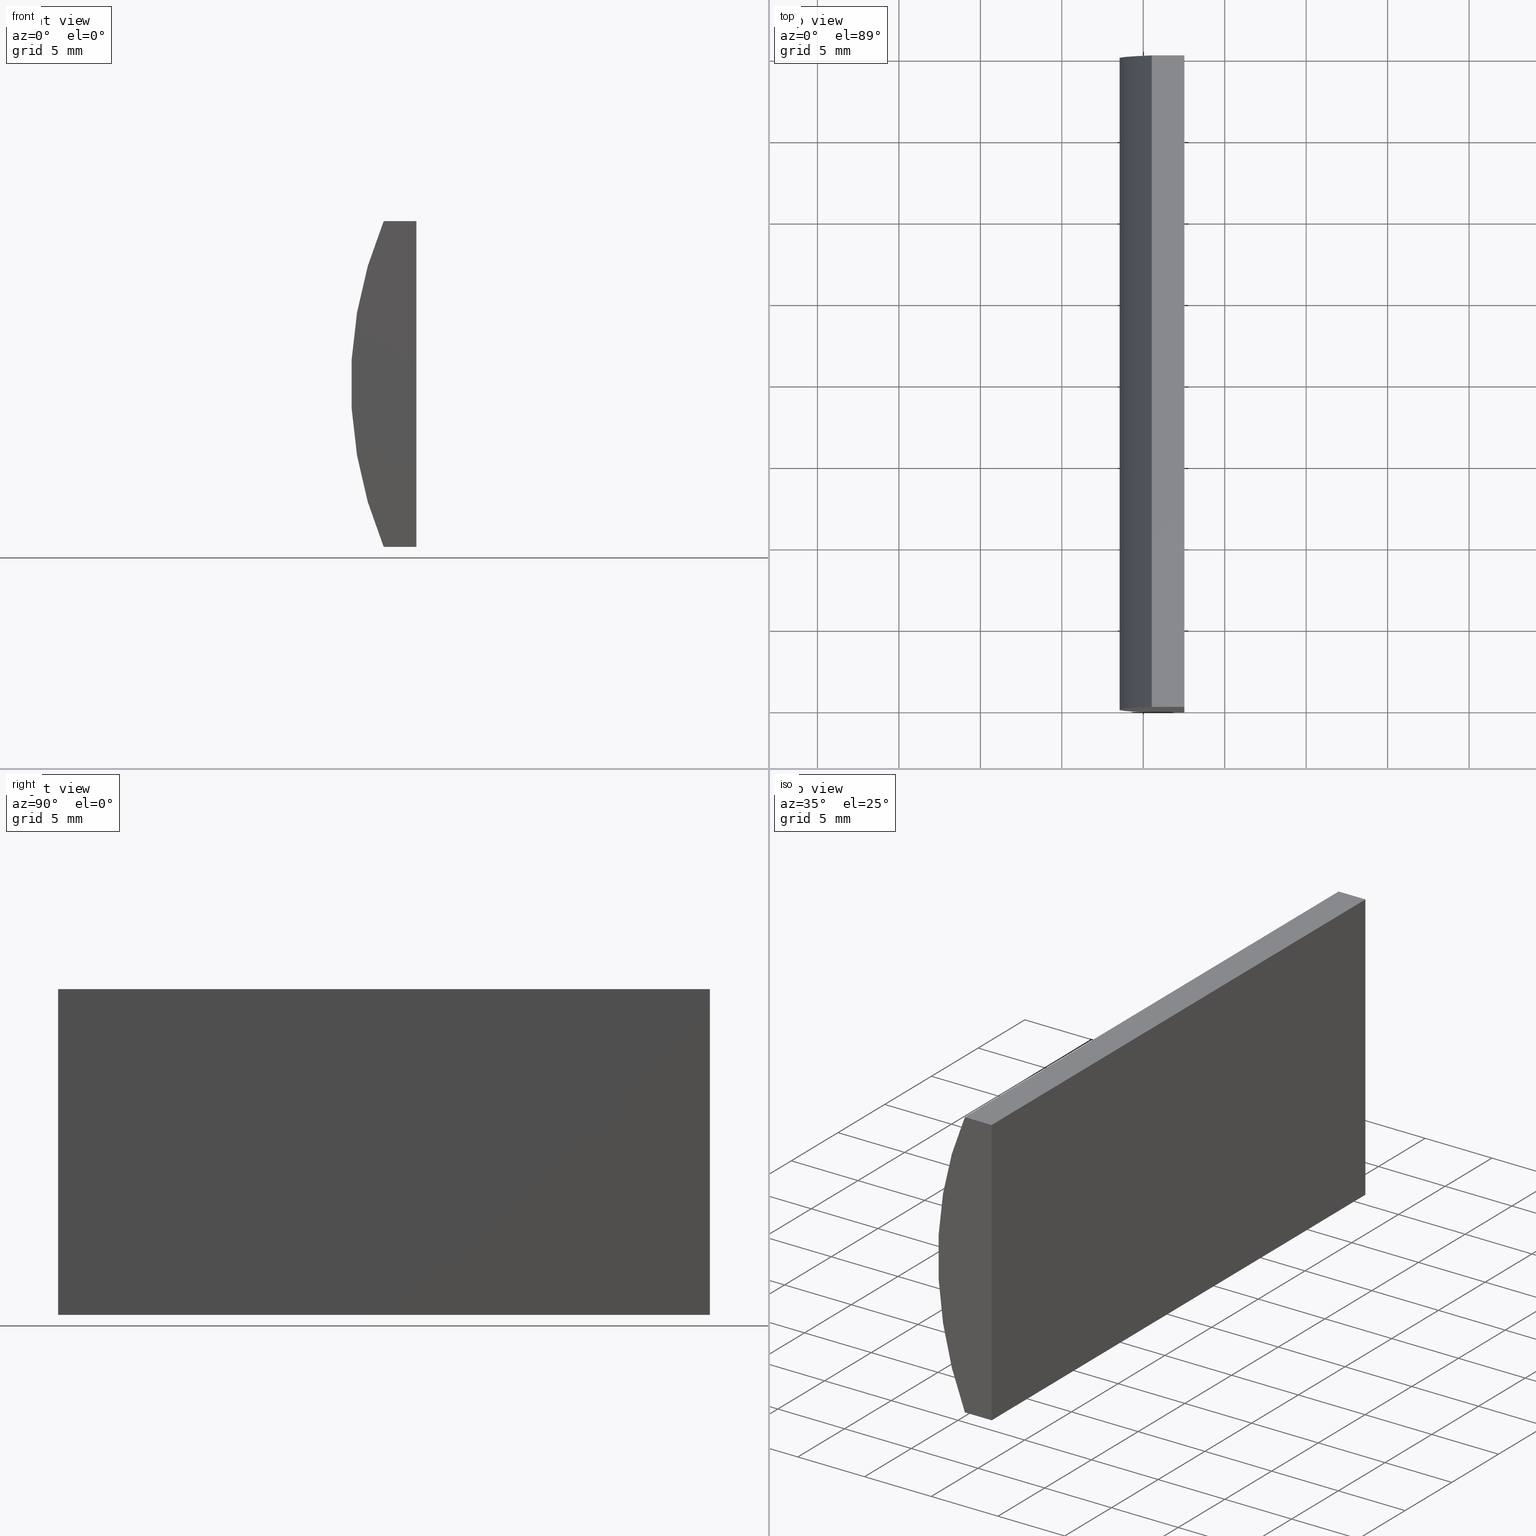
[diagram: canonical four-view strip — front | top / right | iso, engineering-drawing reading convention]
A machine part, canonical four-view strip (front | top / right | iso — engineering-drawing reading convention). The complete STEP part file that produces these views, byte-faithful:
ISO-10303-21;
HEADER;
FILE_DESCRIPTION (( 'STEP AP214' ),
    '1' );
FILE_NAME ('155047.STEP',
    '2019-06-18T03:54:17',
    ( 'user' ),
    ( '΢���й�' ),
    'SwSTEP 2.0',
    'SolidWorks 2016',
    '' );
FILE_SCHEMA (( 'AUTOMOTIVE_DESIGN' ));
ENDSEC;

DATA;
#1 = ORIENTED_EDGE ( 'NONE', *, *, #31, .F. ) ;
#2 = DIRECTION ( 'NONE',  ( -3.469446951953614200E-016, -0.0000000000000000000, -1.000000000000000000 ) ) ;
#3 = ADVANCED_FACE ( 'NONE', ( #80 ), #70, .F. ) ;
#4 = ORIENTED_EDGE ( 'NONE', *, *, #196, .T. ) ;
#5 = LINE ( 'NONE', #18, #135 ) ;
#6 = VERTEX_POINT ( 'NONE', #73 ) ;
#7 = PRESENTATION_LAYER_ASSIGNMENT (  '', '', ( #29 ) ) ;
#8 = DIRECTION ( 'NONE',  ( -0.0000000000000000000, -1.000000000000000000, -0.0000000000000000000 ) ) ;
#9 =( LENGTH_UNIT ( ) NAMED_UNIT ( * ) SI_UNIT ( .MILLI., .METRE. ) );
#10 = SURFACE_SIDE_STYLE ('',( #120 ) ) ;
#11 = CARTESIAN_POINT ( 'NONE',  ( -17.47479566514874000, 40.00000000000000000, -10.00000000000000000 ) ) ;
#12 = LINE ( 'NONE', #195, #198 ) ;
#13 = PLANE ( 'NONE',  #117 ) ;
#14 = AXIS2_PLACEMENT_3D ( 'NONE', #95, #116, #91 ) ;
#15 = PRODUCT_DEFINITION_SHAPE ( 'NONE', 'NONE',  #147 ) ;
#16 = PRESENTATION_STYLE_ASSIGNMENT (( #40 ) ) ;
#17 = ORIENTED_EDGE ( 'NONE', *, *, #188, .T. ) ;
#18 = CARTESIAN_POINT ( 'NONE',  ( -17.47479566514874000, 40.00000000000000000, -10.00000000000000000 ) ) ;
#19 = ADVANCED_FACE ( 'NONE', ( #168 ), #104, .T. ) ;
#20 = VERTEX_POINT ( 'NONE', #11 ) ;
#21 = DIRECTION ( 'NONE',  ( -1.000000000000000000, 0.0000000000000000000, -0.0000000000000000000 ) ) ;
#22 = ADVANCED_FACE ( 'NONE', ( #108 ), #146, .F. ) ;
#23 = DIRECTION ( 'NONE',  ( -1.000000000000000000, -0.0000000000000000000, -0.0000000000000000000 ) ) ;
#24 = LINE ( 'NONE', #192, #100 ) ;
#25 = PLANE ( 'NONE',  #153 ) ;
#26 = EDGE_LOOP ( 'NONE', ( #172, #160, #112, #186 ) ) ;
#27 = FILL_AREA_STYLE ('',( #129 ) ) ;
#28 = VERTEX_POINT ( 'NONE', #111 ) ;
#29 = STYLED_ITEM ( 'NONE', ( #87 ), #169 ) ;
#30 = CARTESIAN_POINT ( 'NONE',  ( -19.48221373003152100, 40.00000000000000000, 10.00000000000000000 ) ) ;
#31 = EDGE_CURVE ( 'NONE', #85, #158, #126, .T. ) ;
#32 = ORIENTED_EDGE ( 'NONE', *, *, #105, .T. ) ;
#33 = CARTESIAN_POINT ( 'NONE',  ( 4.355204334851265500, 0.0000000000000000000, 4.286263797015675000E-017 ) ) ;
#34 = SURFACE_SIDE_STYLE ('',( #178 ) ) ;
#35 = EDGE_LOOP ( 'NONE', ( #50, #119, #121, #4 ) ) ;
#36 = SURFACE_STYLE_USAGE ( .BOTH. , #34 ) ;
#37 = EDGE_CURVE ( 'NONE', #6, #41, #24, .T. ) ;
#38 =( NAMED_UNIT ( * ) PLANE_ANGLE_UNIT ( ) SI_UNIT ( $, .RADIAN. ) );
#39 = DIRECTION ( 'NONE',  ( 0.0000000000000000000, -0.0000000000000000000, 1.000000000000000000 ) ) ;
#40 = SURFACE_STYLE_USAGE ( .BOTH. , #10 ) ;
#41 = VERTEX_POINT ( 'NONE', #109 ) ;
#42 = CARTESIAN_POINT ( 'NONE',  ( -19.48221373003152100, 40.00000000000000000, -10.00000000000000000 ) ) ;
#43 = FACE_OUTER_BOUND ( 'NONE', #69, .T. ) ;
#44 = AXIS2_PLACEMENT_3D ( 'NONE', #189, #125, #128 ) ;
#45 = CIRCLE ( 'NONE', #204, 25.85000000000000500 ) ;
#46 = EDGE_CURVE ( 'NONE', #197, #102, #12, .T. ) ;
#47 =( GEOMETRIC_REPRESENTATION_CONTEXT ( 3 ) GLOBAL_UNCERTAINTY_ASSIGNED_CONTEXT ( ( #154 ) ) GLOBAL_UNIT_ASSIGNED_CONTEXT ( ( #110, #124, #58 ) ) REPRESENTATION_CONTEXT ( 'NONE', 'WORKASPACE' ) );
#48 =( NAMED_UNIT ( * ) PLANE_ANGLE_UNIT ( ) SI_UNIT ( $, .RADIAN. ) );
#49 = UNCERTAINTY_MEASURE_WITH_UNIT (LENGTH_MEASURE( 1.000000000000000100E-005 ), #52, 'distance_accuracy_value', 'NONE');
#50 = ORIENTED_EDGE ( 'NONE', *, *, #31, .T. ) ;
#51 = EDGE_CURVE ( 'NONE', #6, #197, #45, .T. ) ;
#52 =( LENGTH_UNIT ( ) NAMED_UNIT ( * ) SI_UNIT ( .MILLI., .METRE. ) );
#53 = CARTESIAN_POINT ( 'NONE',  ( -19.48221373003152100, 40.00000000000000000, -10.00000000000000000 ) ) ;
#54 = CARTESIAN_POINT ( 'NONE',  ( -17.47479566514874000, 40.00000000000000000, -10.00000000000000000 ) ) ;
#55 = DIRECTION ( 'NONE',  ( 0.0000000000000000000, 0.0000000000000000000, 1.000000000000000000 ) ) ;
#56 =( GEOMETRIC_REPRESENTATION_CONTEXT ( 3 ) GLOBAL_UNCERTAINTY_ASSIGNED_CONTEXT ( ( #183 ) ) GLOBAL_UNIT_ASSIGNED_CONTEXT ( ( #9, #38, #144 ) ) REPRESENTATION_CONTEXT ( 'NONE', 'WORKASPACE' ) );
#57 = VECTOR ( 'NONE', #65, 1000.000000000000000 ) ;
#58 =( NAMED_UNIT ( * ) SI_UNIT ( $, .STERADIAN. ) SOLID_ANGLE_UNIT ( ) );
#59 = DIRECTION ( 'NONE',  ( -1.000000000000000000, -0.0000000000000000000, -0.0000000000000000000 ) ) ;
#60 = PRODUCT_DEFINITION_CONTEXT ( 'detailed design', #90, 'design' ) ;
#61 = COLOUR_RGB ( '',1.000000000000000000, 1.000000000000000000, 1.000000000000000000 ) ;
#62 = CARTESIAN_POINT ( 'NONE',  ( -19.48221373003152100, 0.0000000000000000000, 10.00000000000000000 ) ) ;
#63 = PRESENTATION_LAYER_ASSIGNMENT (  '', '', ( #142 ) ) ;
#64 = CARTESIAN_POINT ( 'NONE',  ( -17.47479566514874000, 0.0000000000000000000, -10.00000000000000000 ) ) ;
#65 = DIRECTION ( 'NONE',  ( 1.000000000000000000, 0.0000000000000000000, 0.0000000000000000000 ) ) ;
#66 = FACE_OUTER_BOUND ( 'NONE', #26, .T. ) ;
#67 = LINE ( 'NONE', #54, #165 ) ;
#68 = ORIENTED_EDGE ( 'NONE', *, *, #157, .T. ) ;
#69 = EDGE_LOOP ( 'NONE', ( #86, #94, #1, #177 ) ) ;
#70 = PLANE ( 'NONE',  #162 ) ;
#71 = MECHANICAL_DESIGN_GEOMETRIC_PRESENTATION_REPRESENTATION (  '', ( #29 ), #56 ) ;
#72 = EDGE_LOOP ( 'NONE', ( #68, #180, #163, #130 ) ) ;
#73 = CARTESIAN_POINT ( 'NONE',  ( -19.48221373003152100, 40.00000000000000000, -10.00000000000000000 ) ) ;
#74 = DIRECTION ( 'NONE',  ( 1.000000000000000000, 0.0000000000000000000, -0.0000000000000000000 ) ) ;
#75 =( GEOMETRIC_REPRESENTATION_CONTEXT ( 3 ) GLOBAL_UNCERTAINTY_ASSIGNED_CONTEXT ( ( #49 ) ) GLOBAL_UNIT_ASSIGNED_CONTEXT ( ( #52, #48, #184 ) ) REPRESENTATION_CONTEXT ( 'NONE', 'WORKASPACE' ) );
#76 = VECTOR ( 'NONE', #8, 1000.000000000000000 ) ;
#77 = FILL_AREA_STYLE ('',( #145 ) ) ;
#78 = DIRECTION ( 'NONE',  ( 0.0000000000000000000, 1.000000000000000000, 0.0000000000000000000 ) ) ;
#79 = EDGE_CURVE ( 'NONE', #20, #6, #136, .T. ) ;
#80 = FACE_OUTER_BOUND ( 'NONE', #35, .T. ) ;
#81 = EDGE_CURVE ( 'NONE', #158, #41, #106, .T. ) ;
#82 = PRODUCT ( '155047', '155047', '', ( #122 ) ) ;
#83 = MECHANICAL_DESIGN_GEOMETRIC_PRESENTATION_REPRESENTATION (  '', ( #142 ), #47 ) ;
#84 = ORIENTED_EDGE ( 'NONE', *, *, #46, .T. ) ;
#85 = VERTEX_POINT ( 'NONE', #143 ) ;
#86 = ORIENTED_EDGE ( 'NONE', *, *, #157, .F. ) ;
#87 = PRESENTATION_STYLE_ASSIGNMENT (( #36 ) ) ;
#88 = APPLICATION_PROTOCOL_DEFINITION ( 'draft international standard', 'automotive_design', 1998, #90 ) ;
#89 = EDGE_LOOP ( 'NONE', ( #193, #84, #32, #199 ) ) ;
#90 = APPLICATION_CONTEXT ( 'automotive_design' ) ;
#91 = DIRECTION ( 'NONE',  ( 0.0000000000000000000, 0.0000000000000000000, -1.000000000000000000 ) ) ;
#92 = PRODUCT_RELATED_PRODUCT_CATEGORY ( 'part', '', ( #82 ) ) ;
#93 = CARTESIAN_POINT ( 'NONE',  ( -19.48221373003152100, 0.0000000000000000000, -10.00000000000000000 ) ) ;
#94 = ORIENTED_EDGE ( 'NONE', *, *, #81, .F. ) ;
#95 = CARTESIAN_POINT ( 'NONE',  ( 4.355204334851265500, 40.00000000000000000, 4.286263797015675000E-017 ) ) ;
#96 = FACE_OUTER_BOUND ( 'NONE', #89, .T. ) ;
#97 = CARTESIAN_POINT ( 'NONE',  ( -17.47479566514874000, 40.00000000000000000, -10.00000000000000000 ) ) ;
#98 = VECTOR ( 'NONE', #114, 1000.000000000000000 ) ;
#99 = DIRECTION ( 'NONE',  ( -0.0000000000000000000, -1.000000000000000000, -0.0000000000000000000 ) ) ;
#100 = VECTOR ( 'NONE', #99, 1000.000000000000000 ) ;
#101 = ADVANCED_FACE ( 'NONE', ( #66 ), #166, .F. ) ;
#102 = VERTEX_POINT ( 'NONE', #179 ) ;
#103 = DIRECTION ( 'NONE',  ( 0.0000000000000000000, 1.000000000000000000, 0.0000000000000000000 ) ) ;
#104 = CYLINDRICAL_SURFACE ( 'NONE', #14, 25.85000000000000500 ) ;
#105 = EDGE_CURVE ( 'NONE', #102, #20, #67, .T. ) ;
#106 = LINE ( 'NONE', #93, #138 ) ;
#107 = CARTESIAN_POINT ( 'NONE',  ( 4.355204334851265500, 0.0000000000000000000, 4.286263797015675000E-017 ) ) ;
#108 = FACE_OUTER_BOUND ( 'NONE', #113, .T. ) ;
#109 = CARTESIAN_POINT ( 'NONE',  ( -19.48221373003152100, 0.0000000000000000000, -10.00000000000000000 ) ) ;
#110 =( LENGTH_UNIT ( ) NAMED_UNIT ( * ) SI_UNIT ( .MILLI., .METRE. ) );
#111 = CARTESIAN_POINT ( 'NONE',  ( -19.48221373003152100, 0.0000000000000000000, 10.00000000000000000 ) ) ;
#112 = ORIENTED_EDGE ( 'NONE', *, *, #46, .F. ) ;
#113 = EDGE_LOOP ( 'NONE', ( #175, #134, #115, #17 ) ) ;
#114 = DIRECTION ( 'NONE',  ( -0.0000000000000000000, -1.000000000000000000, -0.0000000000000000000 ) ) ;
#115 = ORIENTED_EDGE ( 'NONE', *, *, #79, .F. ) ;
#116 = DIRECTION ( 'NONE',  ( -0.0000000000000000000, -1.000000000000000000, -0.0000000000000000000 ) ) ;
#117 = AXIS2_PLACEMENT_3D ( 'NONE', #33, #78, #39 ) ;
#118 = LINE ( 'NONE', #62, #57 ) ;
#119 = ORIENTED_EDGE ( 'NONE', *, *, #188, .F. ) ;
#120 = SURFACE_STYLE_FILL_AREA ( #27 ) ;
#121 = ORIENTED_EDGE ( 'NONE', *, *, #105, .F. ) ;
#122 = PRODUCT_CONTEXT ( 'NONE', #141, 'mechanical' ) ;
#123 = APPLICATION_PROTOCOL_DEFINITION ( 'draft international standard', 'automotive_design', 1998, #141 ) ;
#124 =( NAMED_UNIT ( * ) PLANE_ANGLE_UNIT ( ) SI_UNIT ( $, .RADIAN. ) );
#125 = DIRECTION ( 'NONE',  ( 0.0000000000000000000, 0.0000000000000000000, 1.000000000000000000 ) ) ;
#126 = LINE ( 'NONE', #200, #148 ) ;
#127 = DIRECTION ( 'NONE',  ( 1.000000000000000000, 0.0000000000000000000, 0.0000000000000000000 ) ) ;
#128 = DIRECTION ( 'NONE',  ( 1.000000000000000000, 0.0000000000000000000, 0.0000000000000000000 ) ) ;
#129 = FILL_AREA_STYLE_COLOUR ( '', #61 ) ;
#130 = ORIENTED_EDGE ( 'NONE', *, *, #37, .T. ) ;
#131 = DIRECTION ( 'NONE',  ( 0.0000000000000000000, 0.0000000000000000000, 1.000000000000000000 ) ) ;
#132 = AXIS2_PLACEMENT_3D ( 'NONE', #42, #187, #74 ) ;
#133 = CIRCLE ( 'NONE', #182, 25.85000000000000500 ) ;
#134 = ORIENTED_EDGE ( 'NONE', *, *, #37, .F. ) ;
#135 = VECTOR ( 'NONE', #202, 1000.000000000000000 ) ;
#136 = LINE ( 'NONE', #53, #185 ) ;
#137 = ADVANCED_FACE ( 'NONE', ( #96 ), #25, .T. ) ;
#138 = VECTOR ( 'NONE', #23, 1000.000000000000000 ) ;
#139 = CLOSED_SHELL ( 'NONE', ( #19, #101, #3, #22, #137, #173 ) ) ;
#140 = LINE ( 'NONE', #171, #98 ) ;
#141 = APPLICATION_CONTEXT ( 'automotive_design' ) ;
#142 = STYLED_ITEM ( 'NONE', ( #16 ), #181 ) ;
#143 = CARTESIAN_POINT ( 'NONE',  ( -17.47479566514873300, 0.0000000000000000000, 10.00000000000000000 ) ) ;
#144 =( NAMED_UNIT ( * ) SI_UNIT ( $, .STERADIAN. ) SOLID_ANGLE_UNIT ( ) );
#145 = FILL_AREA_STYLE_COLOUR ( '', #149 ) ;
#146 = PLANE ( 'NONE',  #132 ) ;
#147 = PRODUCT_DEFINITION ( 'δ֪', '', #174, #60 ) ;
#148 = VECTOR ( 'NONE', #2, 1000.000000000000000 ) ;
#149 = COLOUR_RGB ( '',1.000000000000000000, 1.000000000000000000, 1.000000000000000000 ) ;
#150 = CARTESIAN_POINT ( 'NONE',  ( -19.48221373003152100, 40.00000000000000000, 10.00000000000000000 ) ) ;
#151 = DIRECTION ( 'NONE',  ( -1.000000000000000000, 0.0000000000000000000, 3.469446951953614200E-016 ) ) ;
#152 = DIRECTION ( 'NONE',  ( 0.0000000000000000000, 1.000000000000000000, 0.0000000000000000000 ) ) ;
#153 = AXIS2_PLACEMENT_3D ( 'NONE', #159, #152, #155 ) ;
#154 = UNCERTAINTY_MEASURE_WITH_UNIT (LENGTH_MEASURE( 1.000000000000000100E-005 ), #110, 'distance_accuracy_value', 'NONE');
#155 = DIRECTION ( 'NONE',  ( 0.0000000000000000000, -0.0000000000000000000, 1.000000000000000000 ) ) ;
#156 = DIRECTION ( 'NONE',  ( -3.469446951953614200E-016, -0.0000000000000000000, -1.000000000000000000 ) ) ;
#157 = EDGE_CURVE ( 'NONE', #41, #28, #133, .T. ) ;
#158 = VERTEX_POINT ( 'NONE', #64 ) ;
#159 = CARTESIAN_POINT ( 'NONE',  ( 4.355204334851265500, 40.00000000000000000, 4.286263797015675000E-017 ) ) ;
#160 = ORIENTED_EDGE ( 'NONE', *, *, #196, .F. ) ;
#161 = SHAPE_DEFINITION_REPRESENTATION ( #15, #169 ) ;
#162 = AXIS2_PLACEMENT_3D ( 'NONE', #97, #151, #164 ) ;
#163 = ORIENTED_EDGE ( 'NONE', *, *, #51, .F. ) ;
#164 = DIRECTION ( 'NONE',  ( 3.469446951953614200E-016, 0.0000000000000000000, 1.000000000000000000 ) ) ;
#165 = VECTOR ( 'NONE', #156, 1000.000000000000000 ) ;
#166 = PLANE ( 'NONE',  #201 ) ;
#167 = EDGE_CURVE ( 'NONE', #197, #28, #190, .T. ) ;
#168 = FACE_OUTER_BOUND ( 'NONE', #72, .T. ) ;
#169 = ADVANCED_BREP_SHAPE_REPRESENTATION ( '155047', ( #181, #44 ), #75 ) ;
#170 = DIRECTION ( 'NONE',  ( 0.0000000000000000000, 1.000000000000000000, 0.0000000000000000000 ) ) ;
#171 = CARTESIAN_POINT ( 'NONE',  ( -17.47479566514873300, 40.00000000000000000, 10.00000000000000000 ) ) ;
#172 = ORIENTED_EDGE ( 'NONE', *, *, #191, .T. ) ;
#173 = ADVANCED_FACE ( 'NONE', ( #43 ), #13, .F. ) ;
#174 = PRODUCT_DEFINITION_FORMATION_WITH_SPECIFIED_SOURCE ( '�κ�', '', #82, .NOT_KNOWN. ) ;
#175 = ORIENTED_EDGE ( 'NONE', *, *, #81, .T. ) ;
#176 = DIRECTION ( 'NONE',  ( 0.0000000000000000000, 0.0000000000000000000, -1.000000000000000000 ) ) ;
#177 = ORIENTED_EDGE ( 'NONE', *, *, #191, .F. ) ;
#178 = SURFACE_STYLE_FILL_AREA ( #77 ) ;
#179 = CARTESIAN_POINT ( 'NONE',  ( -17.47479566514873300, 40.00000000000000000, 10.00000000000000000 ) ) ;
#180 = ORIENTED_EDGE ( 'NONE', *, *, #167, .F. ) ;
#181 = MANIFOLD_SOLID_BREP ( '͹̨-����1', #139 ) ;
#182 = AXIS2_PLACEMENT_3D ( 'NONE', #107, #103, #131 ) ;
#183 = UNCERTAINTY_MEASURE_WITH_UNIT (LENGTH_MEASURE( 1.000000000000000100E-005 ), #9, 'distance_accuracy_value', 'NONE');
#184 =( NAMED_UNIT ( * ) SI_UNIT ( $, .STERADIAN. ) SOLID_ANGLE_UNIT ( ) );
#185 = VECTOR ( 'NONE', #59, 1000.000000000000000 ) ;
#186 = ORIENTED_EDGE ( 'NONE', *, *, #167, .T. ) ;
#187 = DIRECTION ( 'NONE',  ( 0.0000000000000000000, 0.0000000000000000000, 1.000000000000000000 ) ) ;
#188 = EDGE_CURVE ( 'NONE', #20, #158, #5, .T. ) ;
#189 = CARTESIAN_POINT ( 'NONE',  ( 0.0000000000000000000, 0.0000000000000000000, 0.0000000000000000000 ) ) ;
#190 = LINE ( 'NONE', #150, #76 ) ;
#191 = EDGE_CURVE ( 'NONE', #28, #85, #118, .T. ) ;
#192 = CARTESIAN_POINT ( 'NONE',  ( -19.48221373003152100, 40.00000000000000000, -10.00000000000000000 ) ) ;
#193 = ORIENTED_EDGE ( 'NONE', *, *, #51, .T. ) ;
#194 = CARTESIAN_POINT ( 'NONE',  ( -19.48221373003152100, 40.00000000000000000, 10.00000000000000000 ) ) ;
#195 = CARTESIAN_POINT ( 'NONE',  ( -19.48221373003152100, 40.00000000000000000, 10.00000000000000000 ) ) ;
#196 = EDGE_CURVE ( 'NONE', #102, #85, #140, .T. ) ;
#197 = VERTEX_POINT ( 'NONE', #30 ) ;
#198 = VECTOR ( 'NONE', #127, 1000.000000000000000 ) ;
#199 = ORIENTED_EDGE ( 'NONE', *, *, #79, .T. ) ;
#200 = CARTESIAN_POINT ( 'NONE',  ( -17.47479566514874000, 0.0000000000000000000, -10.00000000000000000 ) ) ;
#201 = AXIS2_PLACEMENT_3D ( 'NONE', #194, #176, #21 ) ;
#202 = DIRECTION ( 'NONE',  ( -0.0000000000000000000, -1.000000000000000000, -0.0000000000000000000 ) ) ;
#203 = CARTESIAN_POINT ( 'NONE',  ( 4.355204334851265500, 40.00000000000000000, 4.286263797015675000E-017 ) ) ;
#204 = AXIS2_PLACEMENT_3D ( 'NONE', #203, #170, #55 ) ;
ENDSEC;
END-ISO-10303-21;
